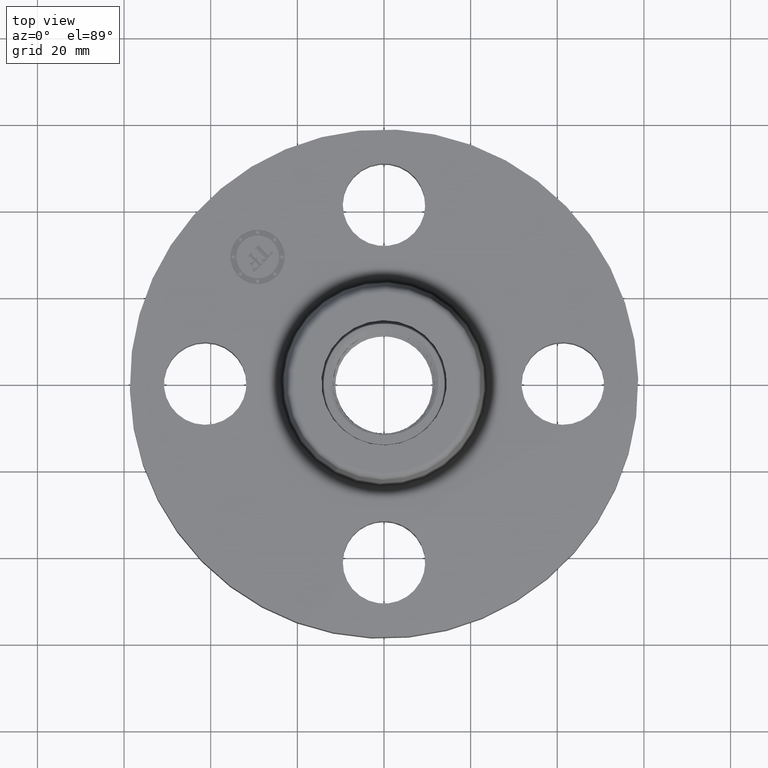
[diagram: clean part render]
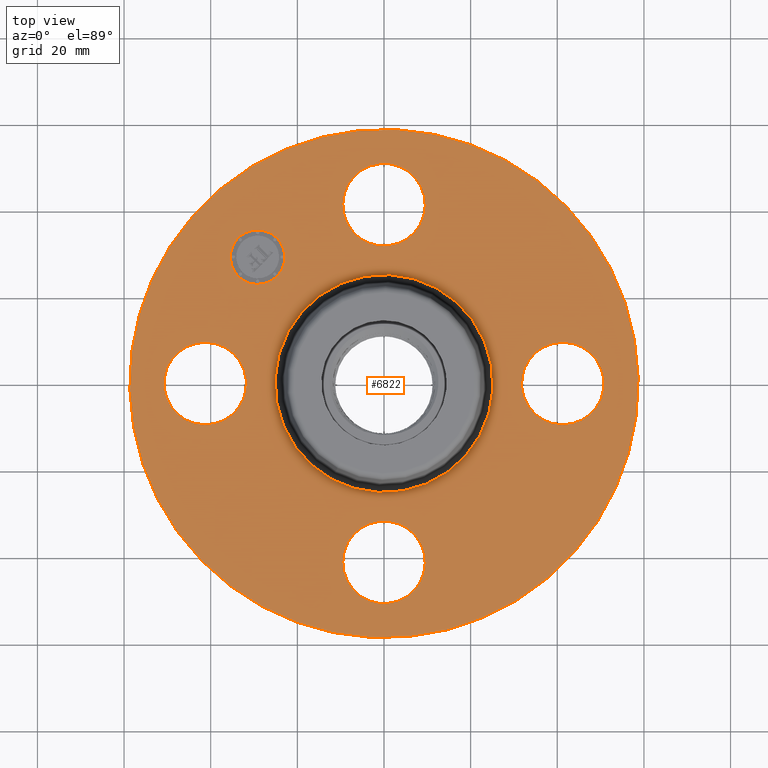
[diagram: same view with one face highlighted and labeled with its STEP entity id]
A machine part, top view. The second image highlights one B-rep face of the part: STEP entity #6822.
In plain terms, the highlighted planar face has unit normal (0, 0, -1).
Its self-contained STEP definition (entity closure, byte-faithful):
#409=AXIS2_PLACEMENT_3D('Circle Axis2P3D',#407,#408,$) ;
#427=AXIS2_PLACEMENT_3D('Circle Axis2P3D',#425,#426,$) ;
#474=AXIS2_PLACEMENT_3D('Circle Axis2P3D',#472,#473,$) ;
#492=AXIS2_PLACEMENT_3D('Circle Axis2P3D',#490,#491,$) ;
#539=AXIS2_PLACEMENT_3D('Circle Axis2P3D',#537,#538,$) ;
#557=AXIS2_PLACEMENT_3D('Circle Axis2P3D',#555,#556,$) ;
#806=AXIS2_PLACEMENT_3D('Circle Axis2P3D',#804,#805,$) ;
#832=AXIS2_PLACEMENT_3D('Circle Axis2P3D',#830,#831,$) ;
#856=AXIS2_PLACEMENT_3D('Circle Axis2P3D',#854,#855,$) ;
#875=AXIS2_PLACEMENT_3D('Circle Axis2P3D',#873,#874,$) ;
#906=AXIS2_PLACEMENT_3D('Circle Axis2P3D',#904,#905,$) ;
#919=AXIS2_PLACEMENT_3D('Circle Axis2P3D',#917,#918,$) ;
#6778=AXIS2_PLACEMENT_3D('Plane Axis2P3D',#6775,#6776,#6777) ;
#6806=AXIS2_PLACEMENT_3D('Circle Axis2P3D',#6804,#6805,$) ;
#6815=AXIS2_PLACEMENT_3D('Circle Axis2P3D',#6813,#6814,$) ;
#383=CARTESIAN_POINT('Vertex',(-0.32909346071,-1.44521542303,0.620000000002)) ;
#404=CARTESIAN_POINT('Vertex',(0.32909346071,-1.80478457698,0.620000000002)) ;
#407=CARTESIAN_POINT('Axis2P3D Location',(1.99005104862E-016,-1.62500000001,0.620000000002)) ;
#425=CARTESIAN_POINT('Axis2P3D Location',(1.99005104862E-016,-1.62500000001,0.620000000002)) ;
#448=CARTESIAN_POINT('Vertex',(-1.44521542303,0.32909346071,0.620000000002)) ;
#469=CARTESIAN_POINT('Vertex',(-1.80478457698,-0.32909346071,0.620000000002)) ;
#472=CARTESIAN_POINT('Axis2P3D Location',(-1.62500000001,-2.98507657293E-016,0.620000000002)) ;
#490=CARTESIAN_POINT('Axis2P3D Location',(-1.62500000001,-2.98507657293E-016,0.620000000002)) ;
#513=CARTESIAN_POINT('Vertex',(1.44521542303,-0.32909346071,0.620000000002)) ;
#534=CARTESIAN_POINT('Vertex',(1.80478457698,0.32909346071,0.620000000002)) ;
#537=CARTESIAN_POINT('Axis2P3D Location',(1.62500000001,-1.8023868212E-016,0.620000000002)) ;
#555=CARTESIAN_POINT('Axis2P3D Location',(1.62500000001,-1.8023868212E-016,0.620000000002)) ;
#804=CARTESIAN_POINT('Axis2P3D Location',(0.,0.,0.620000000002)) ;
#808=CARTESIAN_POINT('Vertex',(-0.474797153847,-0.869110360421,0.620000000002)) ;
#810=CARTESIAN_POINT('Vertex',(0.474797153847,0.869110360421,0.620000000002)) ;
#830=CARTESIAN_POINT('Axis2P3D Location',(0.,0.,0.620000000002)) ;
#851=CARTESIAN_POINT('Vertex',(1.10747299418,2.02721571797,0.620000000002)) ;
#854=CARTESIAN_POINT('Axis2P3D Location',(0.,0.,0.620000000002)) ;
#858=CARTESIAN_POINT('Vertex',(-1.10747299418,-2.02721571797,0.620000000002)) ;
#873=CARTESIAN_POINT('Axis2P3D Location',(0.,0.,0.620000000002)) ;
#894=CARTESIAN_POINT('Vertex',(0.32909346071,1.44521542303,0.620000000002)) ;
#901=CARTESIAN_POINT('Vertex',(-0.32909346071,1.80478457698,0.620000000002)) ;
#904=CARTESIAN_POINT('Axis2P3D Location',(0.,1.62500000001,0.620000000002)) ;
#917=CARTESIAN_POINT('Axis2P3D Location',(0.,1.62500000001,0.620000000002)) ;
#6775=CARTESIAN_POINT('Axis2P3D Location',(0.,2.31000000001,0.620000000002)) ;
#6804=CARTESIAN_POINT('Axis2P3D Location',(-1.14904851943,1.14904851943,0.620000000002)) ;
#6808=CARTESIAN_POINT('Vertex',(-1.32405744778,0.974039591088,0.620000000002)) ;
#6810=CARTESIAN_POINT('Vertex',(-0.974039591088,1.32405744778,0.620000000002)) ;
#6813=CARTESIAN_POINT('Axis2P3D Location',(-1.14904851943,1.14904851943,0.620000000002)) ;
#408=DIRECTION('Axis2P3D Direction',(-0.,0.,-0.0393700787402)) ;
#426=DIRECTION('Axis2P3D Direction',(-0.,0.,-0.0393700787402)) ;
#473=DIRECTION('Axis2P3D Direction',(0.,0.,-0.0393700787402)) ;
#491=DIRECTION('Axis2P3D Direction',(0.,0.,-0.0393700787402)) ;
#538=DIRECTION('Axis2P3D Direction',(0.,-0.,-0.0393700787402)) ;
#556=DIRECTION('Axis2P3D Direction',(0.,-0.,-0.0393700787402)) ;
#805=DIRECTION('Axis2P3D Direction',(0.,0.,-0.0393700787402)) ;
#831=DIRECTION('Axis2P3D Direction',(0.,0.,-0.0393700787402)) ;
#855=DIRECTION('Axis2P3D Direction',(0.,0.,-0.0393700787402)) ;
#874=DIRECTION('Axis2P3D Direction',(0.,0.,-0.0393700787402)) ;
#905=DIRECTION('Axis2P3D Direction',(0.,-0.,-0.0393700787402)) ;
#918=DIRECTION('Axis2P3D Direction',(0.,-0.,-0.0393700787402)) ;
#6776=DIRECTION('Axis2P3D Direction',(0.,0.,-0.0393700787402)) ;
#6777=DIRECTION('Axis2P3D XDirection',(0.0393700787402,0.,0.)) ;
#6805=DIRECTION('Axis2P3D Direction',(0.,0.,-0.0393700787402)) ;
#6814=DIRECTION('Axis2P3D Direction',(0.,0.,-0.0393700787402)) ;
#6781=ORIENTED_EDGE('',*,*,#860,.F.) ;
#6782=ORIENTED_EDGE('',*,*,#877,.F.) ;
#6785=ORIENTED_EDGE('',*,*,#921,.T.) ;
#6786=ORIENTED_EDGE('',*,*,#908,.T.) ;
#6789=ORIENTED_EDGE('',*,*,#812,.T.) ;
#6790=ORIENTED_EDGE('',*,*,#834,.T.) ;
#6793=ORIENTED_EDGE('',*,*,#541,.T.) ;
#6794=ORIENTED_EDGE('',*,*,#559,.T.) ;
#6797=ORIENTED_EDGE('',*,*,#411,.T.) ;
#6798=ORIENTED_EDGE('',*,*,#429,.T.) ;
#6801=ORIENTED_EDGE('',*,*,#476,.T.) ;
#6802=ORIENTED_EDGE('',*,*,#494,.T.) ;
#6819=ORIENTED_EDGE('',*,*,#6812,.T.) ;
#6820=ORIENTED_EDGE('',*,*,#6817,.T.) ;
#6787=FACE_BOUND('',#6784,.T.) ;
#6791=FACE_BOUND('',#6788,.T.) ;
#6795=FACE_BOUND('',#6792,.T.) ;
#6799=FACE_BOUND('',#6796,.T.) ;
#6803=FACE_BOUND('',#6800,.T.) ;
#6821=FACE_BOUND('',#6818,.T.) ;
#6822=ADVANCED_FACE('PartBody',(#6783,#6787,#6791,#6795,#6799,#6803,#6821),#6779,.F.) ;
#410=CIRCLE('generated circle',#409,0.375000000001) ;
#428=CIRCLE('generated circle',#427,0.375000000001) ;
#475=CIRCLE('generated circle',#474,0.375000000001) ;
#493=CIRCLE('generated circle',#492,0.375000000001) ;
#540=CIRCLE('generated circle',#539,0.375000000001) ;
#558=CIRCLE('generated circle',#557,0.375000000001) ;
#807=CIRCLE('generated circle',#806,0.990345977875) ;
#833=CIRCLE('generated circle',#832,0.990345977875) ;
#857=CIRCLE('generated circle',#856,2.31000000001) ;
#876=CIRCLE('generated circle',#875,2.31000000001) ;
#907=CIRCLE('generated circle',#906,0.375000000001) ;
#920=CIRCLE('generated circle',#919,0.375000000001) ;
#6807=CIRCLE('generated circle',#6806,0.247500000001) ;
#6816=CIRCLE('generated circle',#6815,0.247500000001) ;
#411=EDGE_CURVE('',#384,#405,#410,.T.) ;
#429=EDGE_CURVE('',#405,#384,#428,.T.) ;
#476=EDGE_CURVE('',#449,#470,#475,.T.) ;
#494=EDGE_CURVE('',#470,#449,#493,.T.) ;
#541=EDGE_CURVE('',#514,#535,#540,.T.) ;
#559=EDGE_CURVE('',#535,#514,#558,.T.) ;
#812=EDGE_CURVE('',#809,#811,#807,.T.) ;
#834=EDGE_CURVE('',#811,#809,#833,.T.) ;
#860=EDGE_CURVE('',#852,#859,#857,.T.) ;
#877=EDGE_CURVE('',#859,#852,#876,.T.) ;
#908=EDGE_CURVE('',#895,#902,#907,.T.) ;
#921=EDGE_CURVE('',#902,#895,#920,.T.) ;
#6812=EDGE_CURVE('',#6809,#6811,#6807,.T.) ;
#6817=EDGE_CURVE('',#6811,#6809,#6816,.T.) ;
#6780=EDGE_LOOP('',(#6781,#6782)) ;
#6784=EDGE_LOOP('',(#6785,#6786)) ;
#6788=EDGE_LOOP('',(#6789,#6790)) ;
#6792=EDGE_LOOP('',(#6793,#6794)) ;
#6796=EDGE_LOOP('',(#6797,#6798)) ;
#6800=EDGE_LOOP('',(#6801,#6802)) ;
#6818=EDGE_LOOP('',(#6819,#6820)) ;
#6783=FACE_OUTER_BOUND('',#6780,.T.) ;
#6779=PLANE('',#6778) ;
#384=VERTEX_POINT('',#383) ;
#405=VERTEX_POINT('',#404) ;
#449=VERTEX_POINT('',#448) ;
#470=VERTEX_POINT('',#469) ;
#514=VERTEX_POINT('',#513) ;
#535=VERTEX_POINT('',#534) ;
#809=VERTEX_POINT('',#808) ;
#811=VERTEX_POINT('',#810) ;
#852=VERTEX_POINT('',#851) ;
#859=VERTEX_POINT('',#858) ;
#895=VERTEX_POINT('',#894) ;
#902=VERTEX_POINT('',#901) ;
#6809=VERTEX_POINT('',#6808) ;
#6811=VERTEX_POINT('',#6810) ;